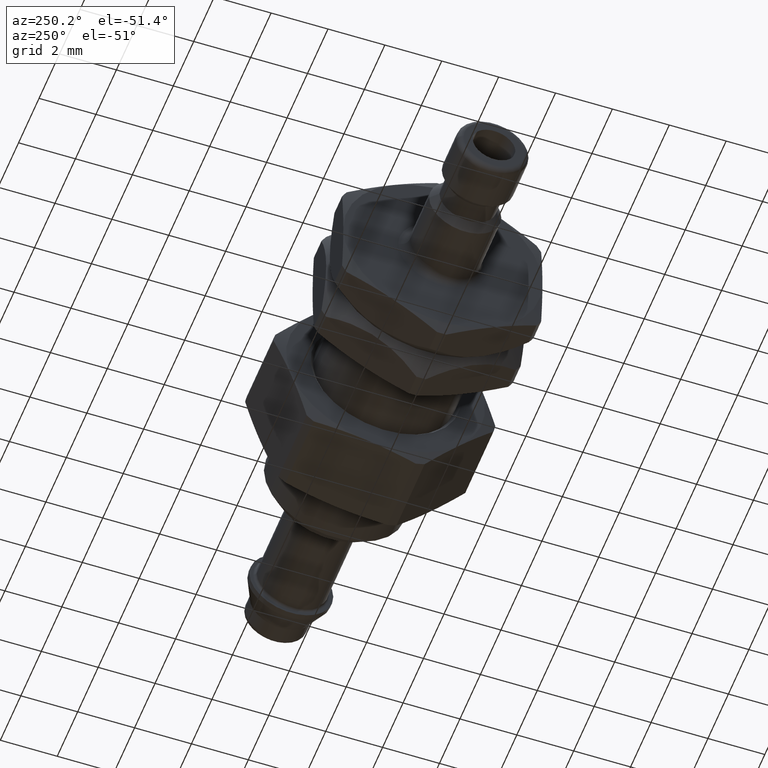
[diagram: clean part render]
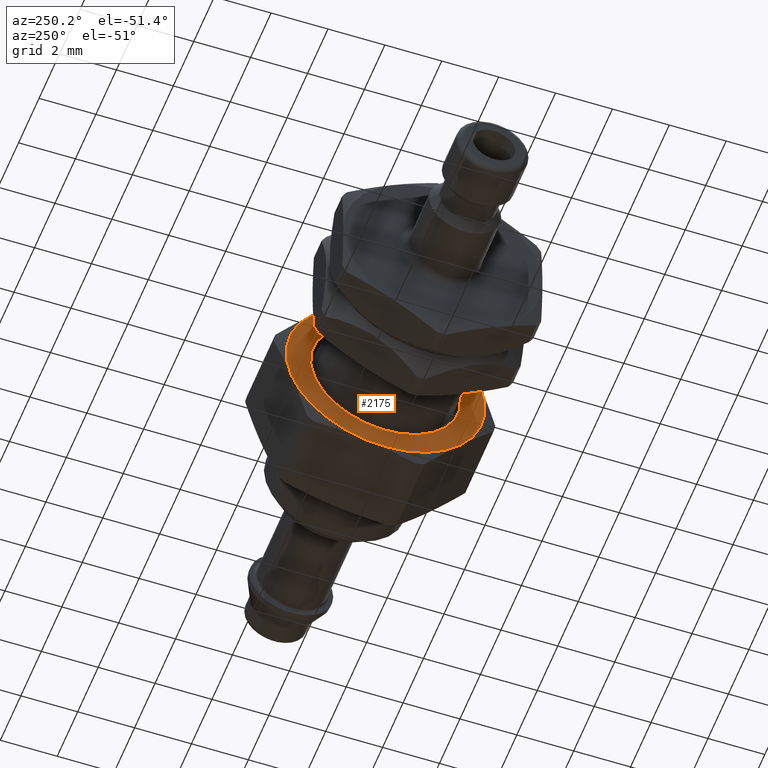
[diagram: same view with one face highlighted and labeled with its STEP entity id]
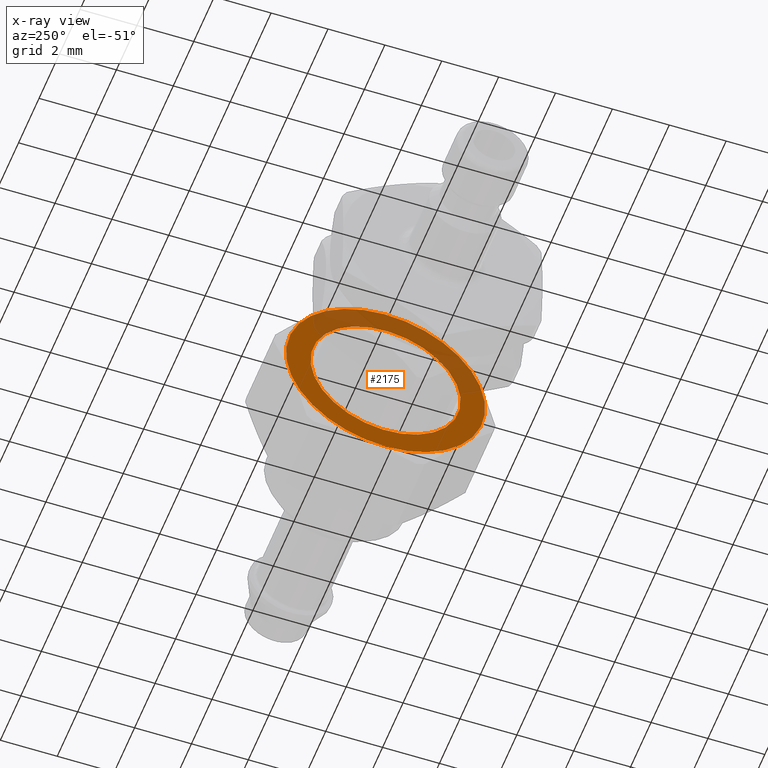
[diagram: x-ray of the same camera — body ghosted, the highlighted face saturated]
A machine part, auxiliary view. The second image highlights one B-rep face of the part: STEP entity #2175.
The next image is the same camera in x-ray: the body ghosted, the highlighted face saturated — about 37% of this face is hidden behind the body in this view.
In plain terms, the highlighted planar face has unit normal (-1, 0, 0).
Its self-contained STEP definition (entity closure, byte-faithful):
#2079=CARTESIAN_POINT('',(-2.081668E-015,2.640000000000000,-3.233068E-016));
#2080=VERTEX_POINT('',#2079);
#2081=CARTESIAN_POINT('',(-2.081668E-015,0.0,0.0));
#2082=DIRECTION('',(-1.0,0.0,0.0));
#2083=DIRECTION('',(0.0,-1.0,0.0));
#2084=AXIS2_PLACEMENT_3D('',#2081,#2082,#2083);
#2085=CIRCLE('',#2084,2.640000000000000);
#2086=EDGE_CURVE('',#2080,#2080,#2085,.T.);
#2111=CARTESIAN_POINT('',(-2.081668E-015,2.870000000000000,0.0));
#2112=DIRECTION('',(-1.0,0.0,0.0));
#2113=DIRECTION('',(0.0,0.0,1.0));
#2114=AXIS2_PLACEMENT_3D('',#2111,#2112,#2113);
#2115=PLANE('',#2114);
#2116=CARTESIAN_POINT('',(-2.220446E-015,3.500000000000001,0.0));
#2117=VERTEX_POINT('',#2116);
#2118=CARTESIAN_POINT('',(-2.220446E-015,1.750000000000000,3.031088913245536));
#2119=VERTEX_POINT('',#2118);
#2120=CARTESIAN_POINT('',(-2.220446E-015,0.0,0.0));
#2121=DIRECTION('',(1.0,0.0,0.0));
#2122=DIRECTION('',(0.0,1.0,0.0));
#2123=AXIS2_PLACEMENT_3D('',#2120,#2121,#2122);
#2124=CIRCLE('',#2123,3.500000000000001);
#2125=EDGE_CURVE('',#2117,#2119,#2124,.T.);
#2126=ORIENTED_EDGE('',*,*,#2125,.F.);
#2127=CARTESIAN_POINT('',(-2.220446E-015,1.749999999999997,-3.031088913245537));
#2128=VERTEX_POINT('',#2127);
#2129=CARTESIAN_POINT('',(-2.220446E-015,0.0,0.0));
#2130=DIRECTION('',(1.0,0.0,0.0));
#2131=DIRECTION('',(0.0,1.0,0.0));
#2132=AXIS2_PLACEMENT_3D('',#2129,#2130,#2131);
#2133=CIRCLE('',#2132,3.500000000000001);
#2134=EDGE_CURVE('',#2128,#2117,#2133,.T.);
#2135=ORIENTED_EDGE('',*,*,#2134,.F.);
#2136=CARTESIAN_POINT('',(-2.220446E-015,-1.750000000000002,-3.031088913245535));
#2137=VERTEX_POINT('',#2136);
#2138=CARTESIAN_POINT('',(-2.220446E-015,0.0,0.0));
#2139=DIRECTION('',(1.0,0.0,0.0));
#2140=DIRECTION('',(0.0,1.0,0.0));
#2141=AXIS2_PLACEMENT_3D('',#2138,#2139,#2140);
#2142=CIRCLE('',#2141,3.500000000000001);
#2143=EDGE_CURVE('',#2137,#2128,#2142,.T.);
#2144=ORIENTED_EDGE('',*,*,#2143,.F.);
#2145=CARTESIAN_POINT('',(-2.220446E-015,-3.500000000000000,5.828671E-016));
#2146=VERTEX_POINT('',#2145);
#2147=CARTESIAN_POINT('',(-2.220446E-015,0.0,0.0));
#2148=DIRECTION('',(1.0,0.0,0.0));
#2149=DIRECTION('',(0.0,1.0,0.0));
#2150=AXIS2_PLACEMENT_3D('',#2147,#2148,#2149);
#2151=CIRCLE('',#2150,3.500000000000001);
#2152=EDGE_CURVE('',#2146,#2137,#2151,.T.);
#2153=ORIENTED_EDGE('',*,*,#2152,.F.);
#2154=CARTESIAN_POINT('',(-2.220446E-015,-1.749999999999999,3.031088913245536));
#2155=VERTEX_POINT('',#2154);
#2156=CARTESIAN_POINT('',(-2.220446E-015,0.0,0.0));
#2157=DIRECTION('',(1.0,0.0,0.0));
#2158=DIRECTION('',(0.0,1.0,0.0));
#2159=AXIS2_PLACEMENT_3D('',#2156,#2157,#2158);
#2160=CIRCLE('',#2159,3.500000000000001);
#2161=EDGE_CURVE('',#2155,#2146,#2160,.T.);
#2162=ORIENTED_EDGE('',*,*,#2161,.F.);
#2163=CARTESIAN_POINT('',(-2.220446E-015,0.0,0.0));
#2164=DIRECTION('',(1.0,0.0,0.0));
#2165=DIRECTION('',(0.0,1.0,0.0));
#2166=AXIS2_PLACEMENT_3D('',#2163,#2164,#2165);
#2167=CIRCLE('',#2166,3.500000000000001);
#2168=EDGE_CURVE('',#2119,#2155,#2167,.T.);
#2169=ORIENTED_EDGE('',*,*,#2168,.F.);
#2170=EDGE_LOOP('',(#2126,#2135,#2144,#2153,#2162,#2169));
#2171=FACE_OUTER_BOUND('',#2170,.T.);
#2172=ORIENTED_EDGE('',*,*,#2086,.F.);
#2173=EDGE_LOOP('',(#2172));
#2174=FACE_BOUND('',#2173,.T.);
#2175=ADVANCED_FACE('',(#2171,#2174),#2115,.T.);